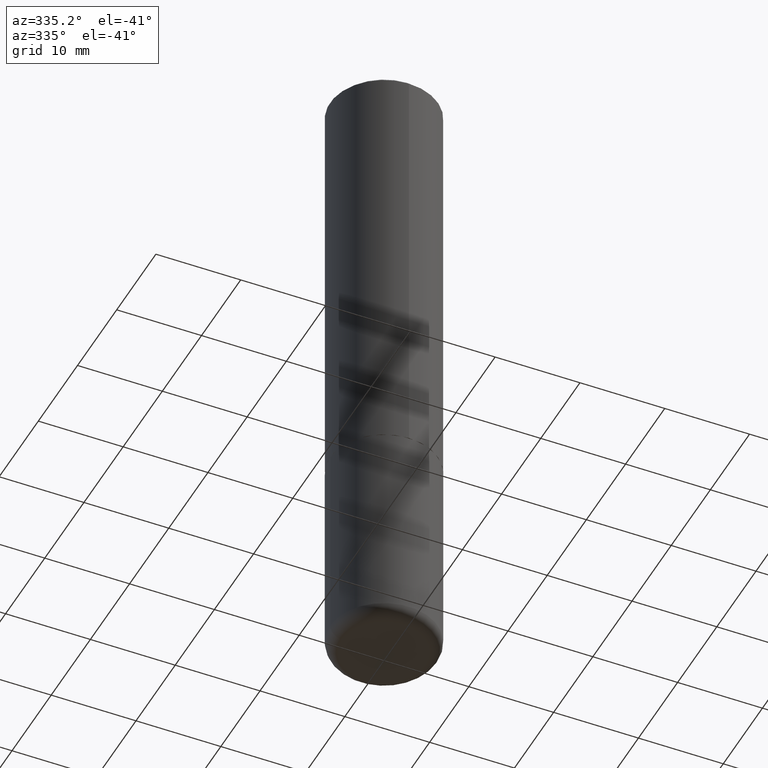
[diagram: clean part render]
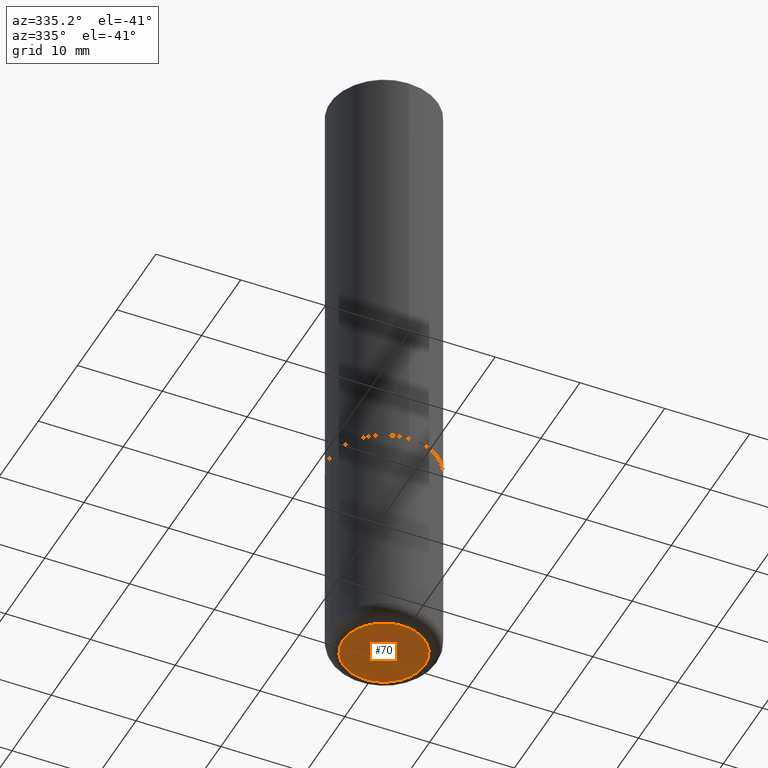
[diagram: same view with one face highlighted and labeled with its STEP entity id]
A machine part, auxiliary view. The second image highlights one B-rep face of the part: STEP entity #70.
In plain terms, the highlighted planar face has unit normal (0, -0, -1).
Its self-contained STEP definition (entity closure, byte-faithful):
#18 = EDGE_CURVE ( 'NONE', #29, #341, #388, .T. ) ;
#29 = VERTEX_POINT ( 'NONE', #129 ) ;
#37 = DIRECTION ( 'NONE',  ( -1.000000000000000000, 6.982962677686265922E-15, -4.876176775795935793E-29 ) ) ;
#40 = CARTESIAN_POINT ( 'NONE',  ( 7.336406418555409790E-29, -1.047444401652943635E-14, -3.000000000000000444 ) ) ;
#70 = ADVANCED_FACE ( 'NONE', ( #197 ), #203, .T. ) ;
#74 = DIRECTION ( 'NONE',  ( -2.445468806185136597E-29, 3.491481338843145583E-15, 1.000000000000000000 ) ) ;
#100 = DIRECTION ( 'NONE',  ( -2.445468806185136597E-29, 3.491481338843145583E-15, 1.000000000000000000 ) ) ;
#114 = AXIS2_PLACEMENT_3D ( 'NONE', #363, #74, #272 ) ;
#129 = CARTESIAN_POINT ( 'NONE',  ( 0.1899999999999999745, -1.180120692528982640E-14, -3.000000000000000444 ) ) ;
#135 = CARTESIAN_POINT ( 'NONE',  ( 7.336406418555409790E-29, -1.047444401652943635E-14, -3.000000000000000444 ) ) ;
#136 = AXIS2_PLACEMENT_3D ( 'NONE', #135, #100, #172 ) ;
#163 = EDGE_CURVE ( 'NONE', #341, #29, #182, .T. ) ;
#172 = DIRECTION ( 'NONE',  ( 1.000000000000000000, -6.982962677686261977E-15, 0.000000000000000000 ) ) ;
#182 = CIRCLE ( 'NONE', #114, 0.1899999999999999745 ) ;
#197 = FACE_OUTER_BOUND ( 'NONE', #310, .T. ) ;
#199 = DIRECTION ( 'NONE',  ( 2.438088387897960049E-29, -3.491481338843145188E-15, -1.000000000000000000 ) ) ;
#203 = PLANE ( 'NONE',  #207 ) ;
#207 = AXIS2_PLACEMENT_3D ( 'NONE', #40, #199, #37 ) ;
#214 = ORIENTED_EDGE ( 'NONE', *, *, #18, .F. ) ;
#220 = ORIENTED_EDGE ( 'NONE', *, *, #163, .F. ) ;
#272 = DIRECTION ( 'NONE',  ( 1.000000000000000000, -6.982962677686261977E-15, 0.000000000000000000 ) ) ;
#310 = EDGE_LOOP ( 'NONE', ( #214, #220 ) ) ;
#341 = VERTEX_POINT ( 'NONE', #378 ) ;
#363 = CARTESIAN_POINT ( 'NONE',  ( 7.336406418555409790E-29, -1.047444401652943635E-14, -3.000000000000000444 ) ) ;
#378 = CARTESIAN_POINT ( 'NONE',  ( -0.1899999999999999745, -8.806505557691924342E-15, -3.000000000000000444 ) ) ;
#388 = CIRCLE ( 'NONE', #136, 0.1899999999999999745 ) ;